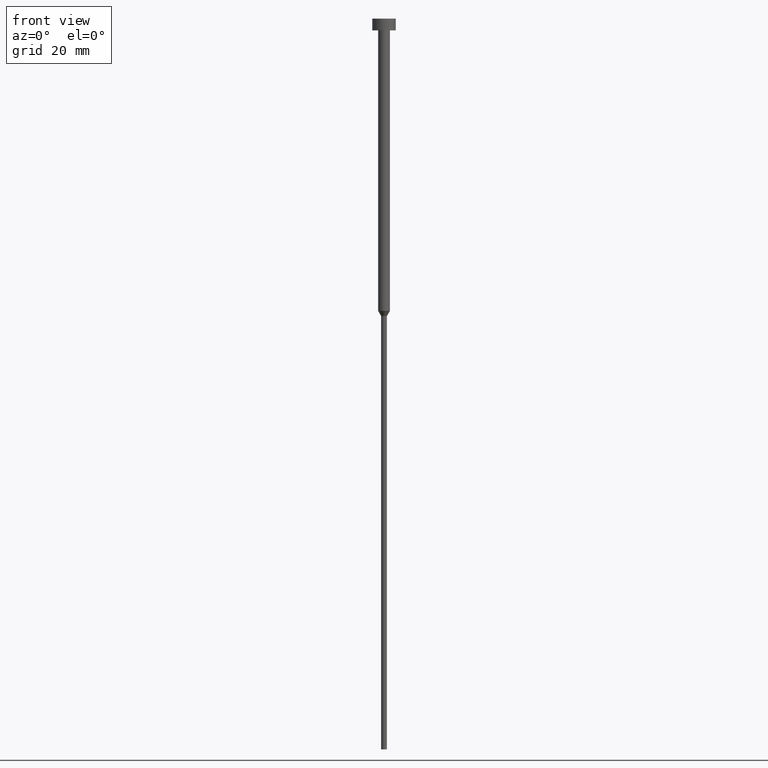
[diagram: clean part render]
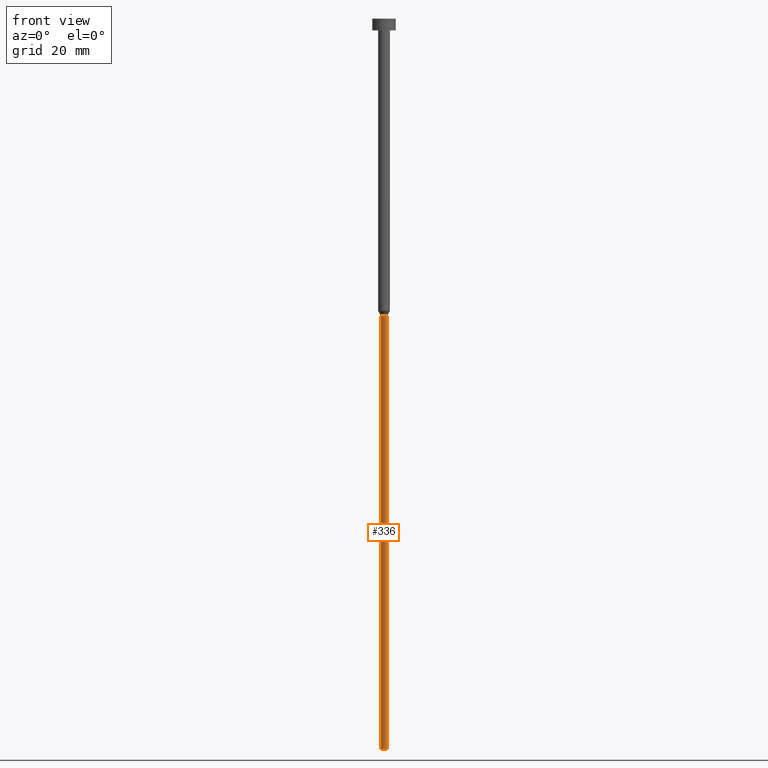
[diagram: same view with one face highlighted and labeled with its STEP entity id]
A machine part, front view. The second image highlights one B-rep face of the part: STEP entity #336.
In plain terms, the highlighted cylindrical surface (edge-blend (fillet) strip) has radius 0.5 mm, axis along (-0, -0, 1).
Its self-contained STEP definition (entity closure, byte-faithful):
#2 = EDGE_CURVE ( 'NONE', #6, #30, #67, .T. ) ;
#6 = VERTEX_POINT ( 'NONE', #146 ) ;
#30 = VERTEX_POINT ( 'NONE', #326 ) ;
#35 = DIRECTION ( 'NONE',  ( -0.000000000000000000, -0.000000000000000000, 1.000000000000000000 ) ) ;
#40 = DIRECTION ( 'NONE',  ( -0.000000000000000000, -0.000000000000000000, 1.000000000000000000 ) ) ;
#63 = DIRECTION ( 'NONE',  ( -0.000000000000000000, -0.000000000000000000, 1.000000000000000000 ) ) ;
#67 = LINE ( 'NONE', #291, #296 ) ;
#70 = LINE ( 'NONE', #284, #167 ) ;
#93 = FACE_OUTER_BOUND ( 'NONE', #169, .T. ) ;
#112 = VERTEX_POINT ( 'NONE', #316 ) ;
#119 = CIRCLE ( 'NONE', #274, 0.5000000000000000000 ) ;
#135 = CARTESIAN_POINT ( 'NONE',  ( 0.000000000000000000, 0.000000000000000000, -125.0000000000000000 ) ) ;
#145 = ORIENTED_EDGE ( 'NONE', *, *, #2, .F. ) ;
#146 = CARTESIAN_POINT ( 'NONE',  ( -0.5000000000000000000, 6.123233995736766036E-17, -125.0000000000000000 ) ) ;
#167 = VECTOR ( 'NONE', #235, 1000.000000000000000 ) ;
#169 = EDGE_LOOP ( 'NONE', ( #145, #338, #285, #263 ) ) ;
#174 = CARTESIAN_POINT ( 'NONE',  ( 0.000000000000000000, 0.000000000000000000, -50.86602540378444814 ) ) ;
#178 = VERTEX_POINT ( 'NONE', #221 ) ;
#181 = DIRECTION ( 'NONE',  ( 1.000000000000000000, 0.000000000000000000, 0.000000000000000000 ) ) ;
#194 = DIRECTION ( 'NONE',  ( 1.000000000000000000, 0.000000000000000000, 0.000000000000000000 ) ) ;
#195 = CYLINDRICAL_SURFACE ( 'NONE', #351, 0.5000000000000000000 ) ;
#202 = EDGE_CURVE ( 'NONE', #6, #112, #232, .T. ) ;
#221 = CARTESIAN_POINT ( 'NONE',  ( 0.5000000000000000000, 0.000000000000000000, -50.86602540378444814 ) ) ;
#232 = CIRCLE ( 'NONE', #279, 0.5000000000000000000 ) ;
#235 = DIRECTION ( 'NONE',  ( -0.000000000000000000, -0.000000000000000000, 1.000000000000000000 ) ) ;
#260 = DIRECTION ( 'NONE',  ( -0.000000000000000000, -0.000000000000000000, 1.000000000000000000 ) ) ;
#263 = ORIENTED_EDGE ( 'NONE', *, *, #327, .F. ) ;
#274 = AXIS2_PLACEMENT_3D ( 'NONE', #174, #40, #181 ) ;
#279 = AXIS2_PLACEMENT_3D ( 'NONE', #135, #35, #194 ) ;
#281 = DIRECTION ( 'NONE',  ( 1.000000000000000000, 0.000000000000000000, 0.000000000000000000 ) ) ;
#284 = CARTESIAN_POINT ( 'NONE',  ( 0.5000000000000000000, 0.000000000000000000, 0.000000000000000000 ) ) ;
#285 = ORIENTED_EDGE ( 'NONE', *, *, #353, .T. ) ;
#291 = CARTESIAN_POINT ( 'NONE',  ( -0.5000000000000000000, 6.123233995736766036E-17, 0.000000000000000000 ) ) ;
#296 = VECTOR ( 'NONE', #260, 1000.000000000000000 ) ;
#316 = CARTESIAN_POINT ( 'NONE',  ( 0.5000000000000000000, 0.000000000000000000, -125.0000000000000000 ) ) ;
#326 = CARTESIAN_POINT ( 'NONE',  ( -0.5000000000000000000, 6.123233995736766036E-17, -50.86602540378444814 ) ) ;
#327 = EDGE_CURVE ( 'NONE', #30, #178, #119, .T. ) ;
#336 = ADVANCED_FACE ( 'NONE', ( #93 ), #195, .T. ) ;
#338 = ORIENTED_EDGE ( 'NONE', *, *, #202, .T. ) ;
#345 = CARTESIAN_POINT ( 'NONE',  ( 0.000000000000000000, 0.000000000000000000, 0.000000000000000000 ) ) ;
#351 = AXIS2_PLACEMENT_3D ( 'NONE', #345, #63, #281 ) ;
#353 = EDGE_CURVE ( 'NONE', #112, #178, #70, .T. ) ;